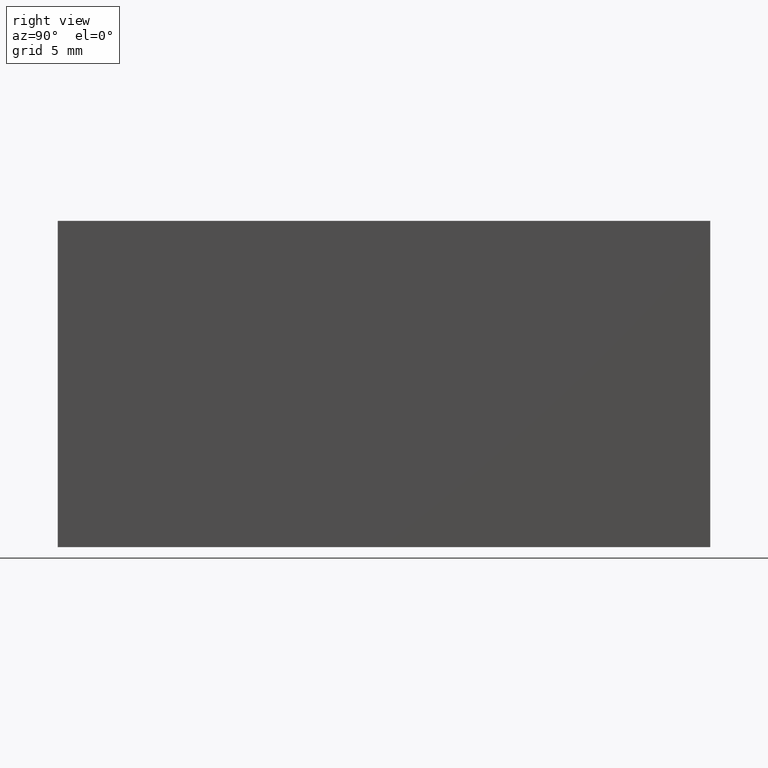
[diagram: clean part render]
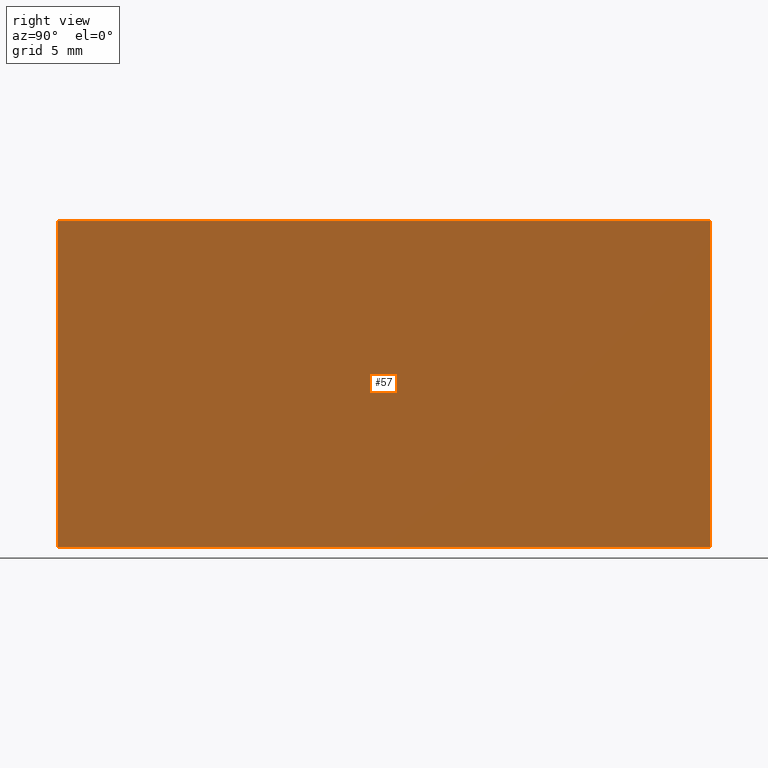
[diagram: same view with one face highlighted and labeled with its STEP entity id]
A machine part, right view. The second image highlights one B-rep face of the part: STEP entity #57.
In plain terms, the highlighted planar face has unit normal (-1, 0, 0).
Its self-contained STEP definition (entity closure, byte-faithful):
#7 = FACE_OUTER_BOUND ( 'NONE', #41, .T. ) ;
#12 = CARTESIAN_POINT ( 'NONE',  ( -31.11479566514874100, 0.0000000000000000000, -9.999999999999992900 ) ) ;
#15 = ORIENTED_EDGE ( 'NONE', *, *, #113, .F. ) ;
#25 = CARTESIAN_POINT ( 'NONE',  ( -31.11479566514874100, 40.00000000000000000, -9.999999999999992900 ) ) ;
#26 = VERTEX_POINT ( 'NONE', #77 ) ;
#27 = VERTEX_POINT ( 'NONE', #75 ) ;
#30 = EDGE_CURVE ( 'NONE', #145, #26, #53, .T. ) ;
#41 = EDGE_LOOP ( 'NONE', ( #192, #15, #80, #191 ) ) ;
#43 = DIRECTION ( 'NONE',  ( -3.469446951953615200E-016, -0.0000000000000000000, -1.000000000000000000 ) ) ;
#46 = EDGE_CURVE ( 'NONE', #145, #27, #74, .T. ) ;
#52 = DIRECTION ( 'NONE',  ( -0.0000000000000000000, -1.000000000000000000, -0.0000000000000000000 ) ) ;
#53 = LINE ( 'NONE', #69, #59 ) ;
#57 = ADVANCED_FACE ( 'NONE', ( #7 ), #100, .F. ) ;
#59 = VECTOR ( 'NONE', #52, 1000.000000000000000 ) ;
#69 = CARTESIAN_POINT ( 'NONE',  ( -31.11479566514873700, 40.00000000000000000, 10.00000000000000000 ) ) ;
#74 = LINE ( 'NONE', #96, #160 ) ;
#75 = CARTESIAN_POINT ( 'NONE',  ( -31.11479566514874100, 40.00000000000000000, -9.999999999999992900 ) ) ;
#77 = CARTESIAN_POINT ( 'NONE',  ( -31.11479566514873700, 0.0000000000000000000, 10.00000000000000000 ) ) ;
#80 = ORIENTED_EDGE ( 'NONE', *, *, #46, .F. ) ;
#90 = VECTOR ( 'NONE', #119, 1000.000000000000000 ) ;
#96 = CARTESIAN_POINT ( 'NONE',  ( -31.11479566514874100, 40.00000000000000000, -9.999999999999992900 ) ) ;
#100 = PLANE ( 'NONE',  #104 ) ;
#104 = AXIS2_PLACEMENT_3D ( 'NONE', #185, #181, #111 ) ;
#106 = VERTEX_POINT ( 'NONE', #12 ) ;
#110 = VECTOR ( 'NONE', #135, 1000.000000000000000 ) ;
#111 = DIRECTION ( 'NONE',  ( 3.469446951953615200E-016, 0.0000000000000000000, 1.000000000000000000 ) ) ;
#113 = EDGE_CURVE ( 'NONE', #27, #106, #186, .T. ) ;
#119 = DIRECTION ( 'NONE',  ( -0.0000000000000000000, -1.000000000000000000, -0.0000000000000000000 ) ) ;
#123 = EDGE_CURVE ( 'NONE', #26, #106, #153, .T. ) ;
#135 = DIRECTION ( 'NONE',  ( -3.469446951953615200E-016, -0.0000000000000000000, -1.000000000000000000 ) ) ;
#145 = VERTEX_POINT ( 'NONE', #172 ) ;
#153 = LINE ( 'NONE', #161, #110 ) ;
#160 = VECTOR ( 'NONE', #43, 1000.000000000000000 ) ;
#161 = CARTESIAN_POINT ( 'NONE',  ( -31.11479566514874100, 0.0000000000000000000, -9.999999999999992900 ) ) ;
#172 = CARTESIAN_POINT ( 'NONE',  ( -31.11479566514873700, 40.00000000000000000, 10.00000000000000000 ) ) ;
#181 = DIRECTION ( 'NONE',  ( -1.000000000000000000, 0.0000000000000000000, 3.469446951953615200E-016 ) ) ;
#185 = CARTESIAN_POINT ( 'NONE',  ( -31.11479566514874100, 40.00000000000000000, -9.999999999999992900 ) ) ;
#186 = LINE ( 'NONE', #25, #90 ) ;
#191 = ORIENTED_EDGE ( 'NONE', *, *, #30, .T. ) ;
#192 = ORIENTED_EDGE ( 'NONE', *, *, #123, .T. ) ;